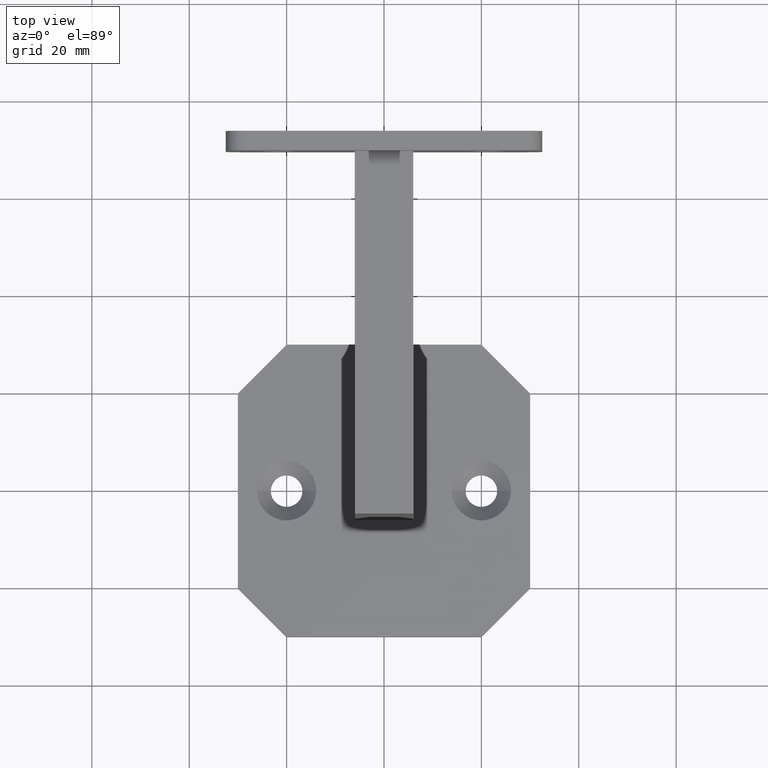
[diagram: clean part render]
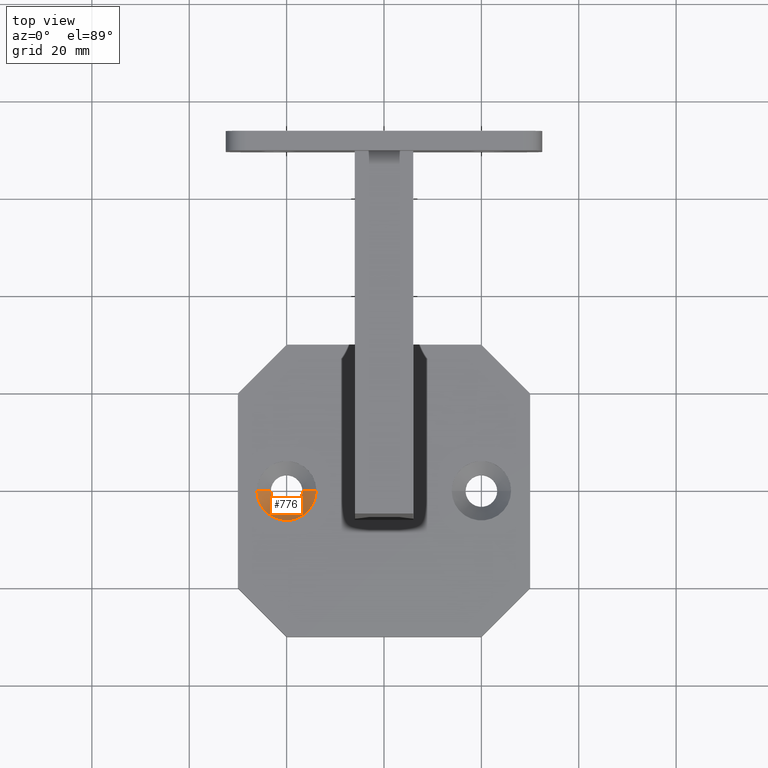
[diagram: same view with one face highlighted and labeled with its STEP entity id]
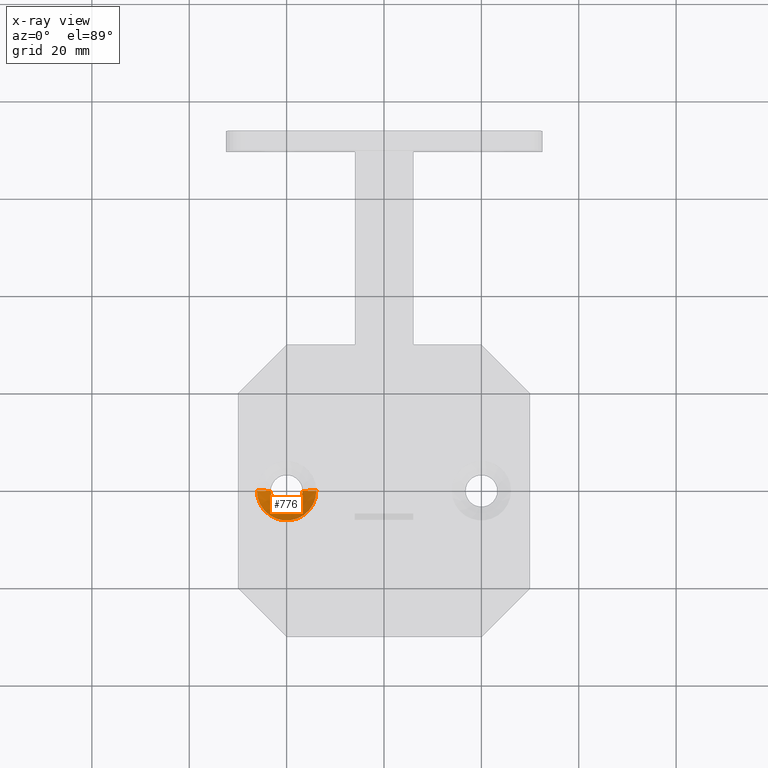
[diagram: x-ray of the same camera — body ghosted, the highlighted face saturated]
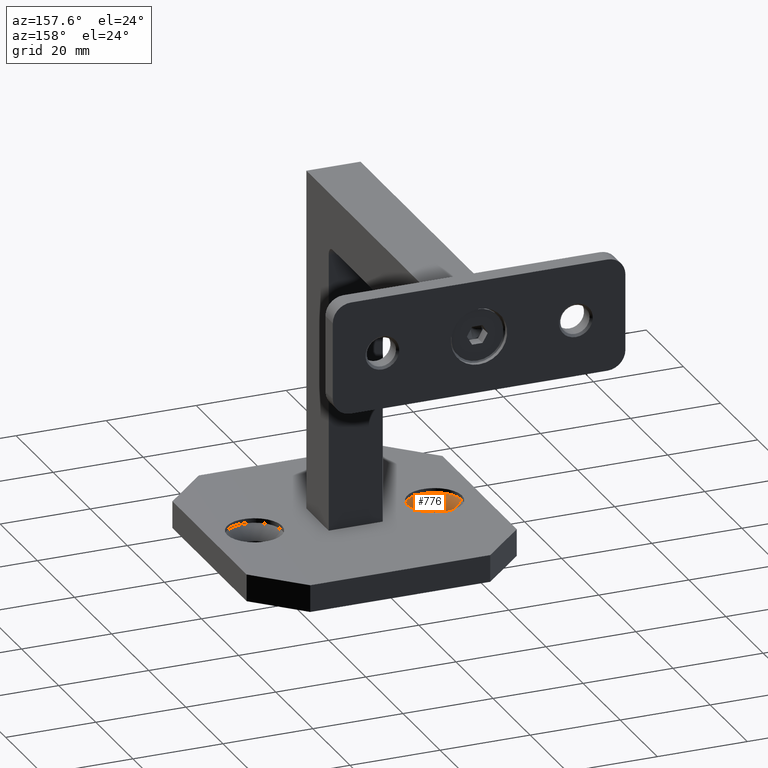
[diagram: same view with one face highlighted and labeled with its STEP entity id]
A machine part, top view. The second image highlights one B-rep face of the part: STEP entity #776.
The next image is the same camera in x-ray: the body ghosted, the highlighted face saturated — about 0% of this face is hidden behind the body in this view.
A second angle (auxiliary view) of the same face is appended — the face is thin or edge-on in the first view.
In plain terms, the highlighted conical surface has half-angle 45 deg.
Its self-contained STEP definition (entity closure, byte-faithful):
#227 = AXIS2_PLACEMENT_3D ( 'NONE', #13835, #13758, #7960 ) ;
#551 = CARTESIAN_POINT ( 'NONE',  ( -13.90000000000000213, 0.000000000000000000, 2.000000000000000888 ) ) ;
#776 = ADVANCED_FACE ( 'NONE', ( #18997 ), #20473, .F. ) ;
#846 = ORIENTED_EDGE ( 'NONE', *, *, #19914, .T. ) ;
#1011 = CARTESIAN_POINT ( 'NONE',  ( -23.25000000000000000, 3.980102097228897245E-16, -0.8499999999999957589 ) ) ;
#3028 = ORIENTED_EDGE ( 'NONE', *, *, #15213, .F. ) ;
#4353 = DIRECTION ( 'NONE',  ( -0.000000000000000000, -0.000000000000000000, 1.000000000000000000 ) ) ;
#6188 = DIRECTION ( 'NONE',  ( 0.7071067811865477948, 0.000000000000000000, 0.7071067811865473507 ) ) ;
#6832 = EDGE_CURVE ( 'NONE', #14072, #23322, #14505, .T. ) ;
#7946 = CARTESIAN_POINT ( 'NONE',  ( -26.09999999999999787, 7.470345474798852320E-16, 2.000000000000000888 ) ) ;
#7960 = DIRECTION ( 'NONE',  ( 1.000000000000000000, 0.000000000000000000, 0.000000000000000000 ) ) ;
#8149 = DIRECTION ( 'NONE',  ( 1.000000000000000000, 0.000000000000000000, 0.000000000000000000 ) ) ;
#8311 = CARTESIAN_POINT ( 'NONE',  ( -20.00000000000000000, 0.000000000000000000, -0.8499999999999957589 ) ) ;
#8503 = EDGE_LOOP ( 'NONE', ( #3028, #846, #10374, #12172 ) ) ;
#10129 = CARTESIAN_POINT ( 'NONE',  ( -26.09999999999999787, 7.470345474798852320E-16, 2.000000000000000888 ) ) ;
#10374 = ORIENTED_EDGE ( 'NONE', *, *, #6832, .T. ) ;
#10839 = DIRECTION ( 'NONE',  ( 1.000000000000000000, 0.000000000000000000, 0.000000000000000000 ) ) ;
#12172 = ORIENTED_EDGE ( 'NONE', *, *, #18608, .F. ) ;
#12613 = CIRCLE ( 'NONE', #20087, 3.249999999999999556 ) ;
#13758 = DIRECTION ( 'NONE',  ( -0.000000000000000000, -0.000000000000000000, 1.000000000000000000 ) ) ;
#13835 = CARTESIAN_POINT ( 'NONE',  ( -20.00000000000000000, 0.000000000000000000, 2.000000000000000888 ) ) ;
#14072 = VERTEX_POINT ( 'NONE', #10129 ) ;
#14235 = VERTEX_POINT ( 'NONE', #20050 ) ;
#14284 = VECTOR ( 'NONE', #21048, 999.9999999999998863 ) ;
#14310 = VECTOR ( 'NONE', #6188, 999.9999999999998863 ) ;
#14505 = CIRCLE ( 'NONE', #227, 6.099999999999997868 ) ;
#15213 = EDGE_CURVE ( 'NONE', #22457, #14235, #12613, .T. ) ;
#15318 = CARTESIAN_POINT ( 'NONE',  ( -13.90000000000000213, 0.000000000000000000, 2.000000000000000888 ) ) ;
#18148 = CARTESIAN_POINT ( 'NONE',  ( -20.00000000000000000, 0.000000000000000000, 2.000000000000000888 ) ) ;
#18608 = EDGE_CURVE ( 'NONE', #14235, #23322, #19847, .T. ) ;
#18997 = FACE_OUTER_BOUND ( 'NONE', #8503, .T. ) ;
#19847 = LINE ( 'NONE', #551, #14310 ) ;
#19914 = EDGE_CURVE ( 'NONE', #22457, #14072, #22782, .T. ) ;
#20050 = CARTESIAN_POINT ( 'NONE',  ( -16.75000000000000000, 0.000000000000000000, -0.8499999999999957589 ) ) ;
#20087 = AXIS2_PLACEMENT_3D ( 'NONE', #8311, #4353, #8149 ) ;
#20473 = CONICAL_SURFACE ( 'NONE', #23380, 6.099999999999997868, 0.7853981633974485010 ) ;
#21048 = DIRECTION ( 'NONE',  ( -0.7071067811865477948, 8.659560562354936556E-17, 0.7071067811865473507 ) ) ;
#22063 = DIRECTION ( 'NONE',  ( -0.000000000000000000, -0.000000000000000000, 1.000000000000000000 ) ) ;
#22457 = VERTEX_POINT ( 'NONE', #1011 ) ;
#22782 = LINE ( 'NONE', #7946, #14284 ) ;
#23322 = VERTEX_POINT ( 'NONE', #15318 ) ;
#23380 = AXIS2_PLACEMENT_3D ( 'NONE', #18148, #22063, #10839 ) ;